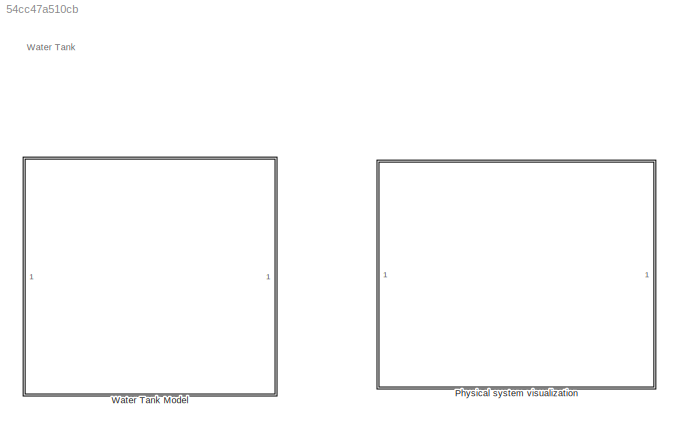
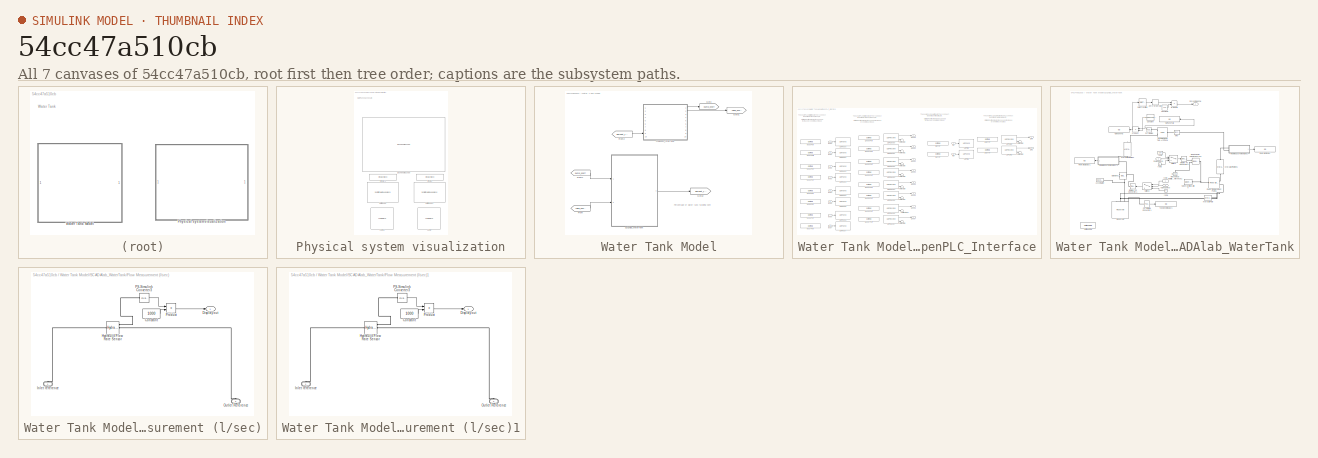
[diagram: thumbnail index - all 7 canvases of the model, root first then tree order]
MODEL slx_54cc47a510cb
KIND model
CONFIG AbsTol = auto
CONFIG EnableMultiTasking = off
CONFIG FixedStep = auto
CONFIG MaxStep = auto
CONFIG MinStep = auto
CONFIG RelTol = 1e-3
CONFIG SampleTimeConstraint = Unconstrained
CONFIG Solver = FixedStepDiscrete
CONFIG SolverName = FixedStepDiscrete
CONFIG StartTime = 0.0
CONFIG StopTime = inf
WORKSPACE source: mxarray member
WORKSPACE PLC_IP_Address = 'localhost'
BLOCK [SubSystem] Physical system visualization
  Ports = []
  RequestExecContextInheritance = off
BLOCK [DashboardScope] Physical system visualization/Dashboard Scope
BLOCK [DisplayBlock] Physical system visualization/Display
  Format = short
  LabelPosition = Hide
  Transparency = 1
BLOCK [DisplayBlock] Physical system visualization/Display1
  Format = short
  LabelPosition = Hide
  Transparency = 1
BLOCK [SemiCircularGaugeBlock] Physical system visualization/Half Gauge
  ScaleMax = 0.02
BLOCK [SemiCircularGaugeBlock] Physical system visualization/Half Gauge1
  ScaleMax = 0.02
BLOCK [LampBlock] Physical system visualization/Lamp
BLOCK [LampBlock] Physical system visualization/Lamp1
BLOCK [SubSystem] Water Tank Model
  Ports = []
  RequestExecContextInheritance = off
BLOCK [From] Water Tank Model/From
  GotoTag = valve_onoff
BLOCK [From] Water Tank Model/From1
  GotoTag = pump_onoff
BLOCK [From] Water Tank Model/From2
  GotoTag = percent_full
BLOCK [Goto] Water Tank Model/Goto
  GotoTag = pump_onoff
BLOCK [Goto] Water Tank Model/Goto1
  GotoTag = valve_onoff
BLOCK [Goto] Water Tank Model/Goto2
  GotoTag = percent_full
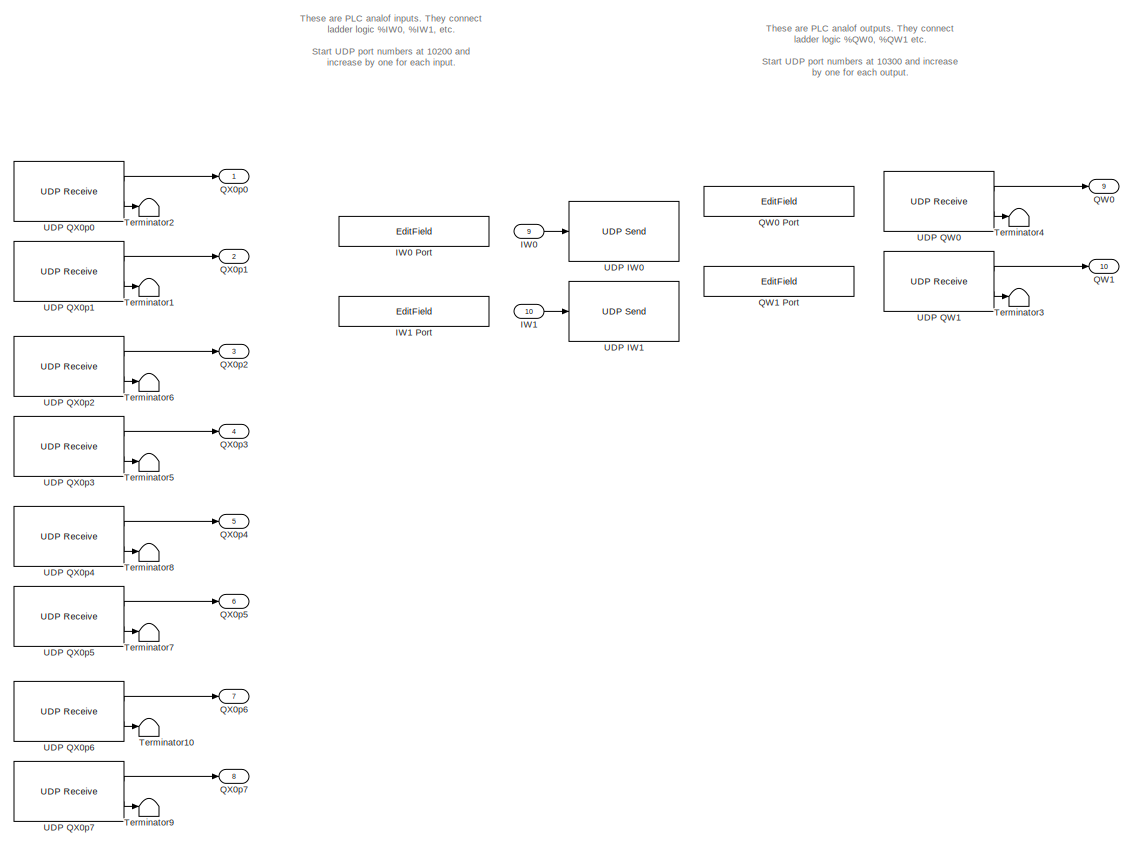
[diagram: Water Tank Model/OpenPLC_Interface - part 1/2, right side, full height]
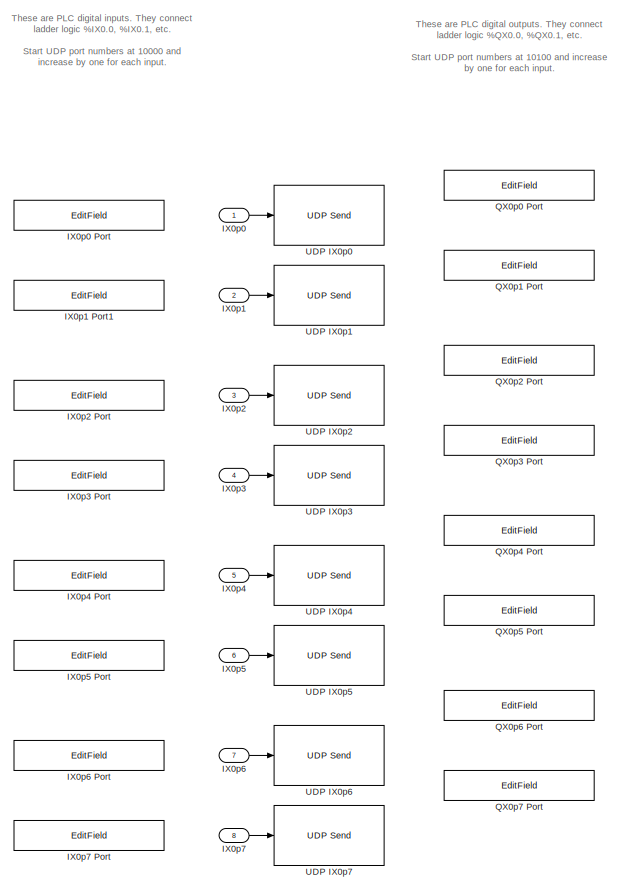
[diagram: Water Tank Model/OpenPLC_Interface - part 2/2, left side, full height]
BLOCK [SubSystem] Water Tank Model/OpenPLC_Interface
  Ports = [10, 10]
  RequestExecContextInheritance = off
BLOCK [Inport] Water Tank Model/OpenPLC_Interface/IW0
  IconDisplay = Port number
  Port = 9
BLOCK [EditField] Water Tank Model/OpenPLC_Interface/IW0 Port
  Alignment = Center
  LabelPosition = Hide
  ShowInitialText = on
BLOCK [Inport] Water Tank Model/OpenPLC_Interface/IW1
  IconDisplay = Port number
  Port = 10
BLOCK [EditField] Water Tank Model/OpenPLC_Interface/IW1 Port
  Alignment = Center
  LabelPosition = Hide
  ShowInitialText = on
BLOCK [Inport] Water Tank Model/OpenPLC_Interface/IX0p0 
  IconDisplay = Port number
BLOCK [EditField] Water Tank Model/OpenPLC_Interface/IX0p0 Port
  Alignment = Center
  LabelPosition = Hide
  ShowInitialText = on
BLOCK [Inport] Water Tank Model/OpenPLC_Interface/IX0p1
  IconDisplay = Port number
  Port = 2
BLOCK [EditField] Water Tank Model/OpenPLC_Interface/IX0p1 Port1
  Alignment = Center
  LabelPosition = Hide
  ShowInitialText = on
BLOCK [Inport] Water Tank Model/OpenPLC_Interface/IX0p2
  IconDisplay = Port number
  Port = 3
BLOCK [EditField] Water Tank Model/OpenPLC_Interface/IX0p2 Port
  Alignment = Center
  LabelPosition = Hide
  ShowInitialText = on
BLOCK [Inport] Water Tank Model/OpenPLC_Interface/IX0p3
  IconDisplay = Port number
  Port = 4
BLOCK [EditField] Water Tank Model/OpenPLC_Interface/IX0p3 Port
  Alignment = Center
  LabelPosition = Hide
  ShowInitialText = on
BLOCK [Inport] Water Tank Model/OpenPLC_Interface/IX0p4
  IconDisplay = Port number
  Port = 5
BLOCK [EditField] Water Tank Model/OpenPLC_Interface/IX0p4 Port
  Alignment = Center
  LabelPosition = Hide
  ShowInitialText = on
BLOCK [Inport] Water Tank Model/OpenPLC_Interface/IX0p5
  IconDisplay = Port number
  Port = 6
BLOCK [EditField] Water Tank Model/OpenPLC_Interface/IX0p5 Port
  Alignment = Center
  LabelPosition = Hide
  ShowInitialText = on
BLOCK [Inport] Water Tank Model/OpenPLC_Interface/IX0p6
  IconDisplay = Port number
  Port = 7
BLOCK [EditField] Water Tank Model/OpenPLC_Interface/IX0p6 Port
  Alignment = Center
  LabelPosition = Hide
  ShowInitialText = on
BLOCK [Inport] Water Tank Model/OpenPLC_Interface/IX0p7
  IconDisplay = Port number
  Port = 8
BLOCK [EditField] Water Tank Model/OpenPLC_Interface/IX0p7 Port
  Alignment = Center
  LabelPosition = Hide
  ShowInitialText = on
BLOCK [Outport] Water Tank Model/OpenPLC_Interface/QW0
  IconDisplay = Port number
  Port = 9
BLOCK [EditField] Water Tank Model/OpenPLC_Interface/QW0 Port
  Alignment = Center
  LabelPosition = Hide
  ShowInitialText = on
BLOCK [Outport] Water Tank Model/OpenPLC_Interface/QW1
  IconDisplay = Port number
  Port = 10
BLOCK [EditField] Water Tank Model/OpenPLC_Interface/QW1 Port
  Alignment = Center
  LabelPosition = Hide
  ShowInitialText = on
BLOCK [Outport] Water Tank Model/OpenPLC_Interface/QX0p0
  IconDisplay = Port number
BLOCK [EditField] Water Tank Model/OpenPLC_Interface/QX0p0 Port
  Alignment = Center
  LabelPosition = Hide
  ShowInitialText = on
BLOCK [Outport] Water Tank Model/OpenPLC_Interface/QX0p1
  IconDisplay = Port number
  Port = 2
BLOCK [EditField] Water Tank Model/OpenPLC_Interface/QX0p1 Port
  Alignment = Center
  LabelPosition = Hide
  ShowInitialText = on
BLOCK [Outport] Water Tank Model/OpenPLC_Interface/QX0p2
  IconDisplay = Port number
  Port = 3
BLOCK [EditField] Water Tank Model/OpenPLC_Interface/QX0p2 Port
  Alignment = Center
  LabelPosition = Hide
  ShowInitialText = on
BLOCK [Outport] Water Tank Model/OpenPLC_Interface/QX0p3
  IconDisplay = Port number
  Port = 4
BLOCK [EditField] Water Tank Model/OpenPLC_Interface/QX0p3 Port
  Alignment = Center
  LabelPosition = Hide
  ShowInitialText = on
BLOCK [Outport] Water Tank Model/OpenPLC_Interface/QX0p4
  IconDisplay = Port number
  Port = 5
BLOCK [EditField] Water Tank Model/OpenPLC_Interface/QX0p4 Port
  Alignment = Center
  LabelPosition = Hide
  ShowInitialText = on
BLOCK [Outport] Water Tank Model/OpenPLC_Interface/QX0p5
  IconDisplay = Port number
  Port = 6
BLOCK [EditField] Water Tank Model/OpenPLC_Interface/QX0p5 Port
  Alignment = Center
  LabelPosition = Hide
  ShowInitialText = on
BLOCK [Outport] Water Tank Model/OpenPLC_Interface/QX0p6
  IconDisplay = Port number
  Port = 7
BLOCK [EditField] Water Tank Model/OpenPLC_Interface/QX0p6 Port
  Alignment = Center
  LabelPosition = Hide
  ShowInitialText = on
BLOCK [Outport] Water Tank Model/OpenPLC_Interface/QX0p7
  IconDisplay = Port number
  Port = 8
BLOCK [EditField] Water Tank Model/OpenPLC_Interface/QX0p7 Port
  Alignment = Center
  LabelPosition = Hide
  ShowInitialText = on
BLOCK [Terminator] Water Tank Model/OpenPLC_Interface/Terminator1
BLOCK [Terminator] Water Tank Model/OpenPLC_Interface/Terminator10
BLOCK [Terminator] Water Tank Model/OpenPLC_Interface/Terminator2
BLOCK [Terminator] Water Tank Model/OpenPLC_Interface/Terminator3
BLOCK [Terminator] Water Tank Model/OpenPLC_Interface/Terminator4
BLOCK [Terminator] Water Tank Model/OpenPLC_Interface/Terminator5
BLOCK [Terminator] Water Tank Model/OpenPLC_Interface/Terminator6
BLOCK [Terminator] Water Tank Model/OpenPLC_Interface/Terminator7
BLOCK [Terminator] Water Tank Model/OpenPLC_Interface/Terminator8
BLOCK [Terminator] Water Tank Model/OpenPLC_Interface/Terminator9
BLOCK [Reference] Water Tank Model/OpenPLC_Interface/UDP IW0  REF=dspnetwork/UDP Send
  Ports = [1]
  SourceBlock = dspnetwork/UDP Send
  SourceProductBaseCode = DS
  SourceProductName = DSP System Toolbox
  SourceType = UDP Send
BLOCK [Reference] Water Tank Model/OpenPLC_Interface/UDP IW1  REF=dspnetwork/UDP Send
  Ports = [1]
  SourceBlock = dspnetwork/UDP Send
  SourceProductBaseCode = DS
  SourceProductName = DSP System Toolbox
  SourceType = UDP Send
BLOCK [Reference] Water Tank Model/OpenPLC_Interface/UDP IX0p0  REF=dspnetwork/UDP Send
  Ports = [1]
  SourceBlock = dspnetwork/UDP Send
  SourceProductBaseCode = DS
  SourceProductName = DSP System Toolbox
  SourceType = UDP Send
BLOCK [Reference] Water Tank Model/OpenPLC_Interface/UDP IX0p1  REF=dspnetwork/UDP Send
  Ports = [1]
  SourceBlock = dspnetwork/UDP Send
  SourceProductBaseCode = DS
  SourceProductName = DSP System Toolbox
  SourceType = UDP Send
BLOCK [Reference] Water Tank Model/OpenPLC_Interface/UDP IX0p2  REF=dspnetwork/UDP Send
  Ports = [1]
  SourceBlock = dspnetwork/UDP Send
  SourceProductBaseCode = DS
  SourceProductName = DSP System Toolbox
  SourceType = UDP Send
BLOCK [Reference] Water Tank Model/OpenPLC_Interface/UDP IX0p3  REF=dspnetwork/UDP Send
  Ports = [1]
  SourceBlock = dspnetwork/UDP Send
  SourceProductBaseCode = DS
  SourceProductName = DSP System Toolbox
  SourceType = UDP Send
BLOCK [Reference] Water Tank Model/OpenPLC_Interface/UDP IX0p4  REF=dspnetwork/UDP Send
  Ports = [1]
  SourceBlock = dspnetwork/UDP Send
  SourceProductBaseCode = DS
  SourceProductName = DSP System Toolbox
  SourceType = UDP Send
BLOCK [Reference] Water Tank Model/OpenPLC_Interface/UDP IX0p5  REF=dspnetwork/UDP Send
  Ports = [1]
  SourceBlock = dspnetwork/UDP Send
  SourceProductBaseCode = DS
  SourceProductName = DSP System Toolbox
  SourceType = UDP Send
BLOCK [Reference] Water Tank Model/OpenPLC_Interface/UDP IX0p6  REF=dspnetwork/UDP Send
  Ports = [1]
  SourceBlock = dspnetwork/UDP Send
  SourceProductBaseCode = DS
  SourceProductName = DSP System Toolbox
  SourceType = UDP Send
BLOCK [Reference] Water Tank Model/OpenPLC_Interface/UDP IX0p7  REF=dspnetwork/UDP Send
  Ports = [1]
  SourceBlock = dspnetwork/UDP Send
  SourceProductBaseCode = DS
  SourceProductName = DSP System Toolbox
  SourceType = UDP Send
BLOCK [Reference] Water Tank Model/OpenPLC_Interface/UDP QW0  REF=dspnetwork/UDP Receive
  Ports = [0, 2]
  SourceBlock = dspnetwork/UDP Receive
  SourceProductBaseCode = DS
  SourceProductName = DSP System Toolbox
  SourceType = UDP Receive
BLOCK [Reference] Water Tank Model/OpenPLC_Interface/UDP QW1  REF=dspnetwork/UDP Receive
  Ports = [0, 2]
  SourceBlock = dspnetwork/UDP Receive
  SourceProductBaseCode = DS
  SourceProductName = DSP System Toolbox
  SourceType = UDP Receive
BLOCK [Reference] Water Tank Model/OpenPLC_Interface/UDP QX0p0  REF=dspnetwork/UDP Receive
  Ports = [0, 2]
  SourceBlock = dspnetwork/UDP Receive
  SourceProductBaseCode = DS
  SourceProductName = DSP System Toolbox
  SourceType = UDP Receive
BLOCK [Reference] Water Tank Model/OpenPLC_Interface/UDP QX0p1  REF=dspnetwork/UDP Receive
  Ports = [0, 2]
  SourceBlock = dspnetwork/UDP Receive
  SourceProductBaseCode = DS
  SourceProductName = DSP System Toolbox
  SourceType = UDP Receive
BLOCK [Reference] Water Tank Model/OpenPLC_Interface/UDP QX0p2  REF=dspnetwork/UDP Receive
  Ports = [0, 2]
  SourceBlock = dspnetwork/UDP Receive
  SourceProductBaseCode = DS
  SourceProductName = DSP System Toolbox
  SourceType = UDP Receive
BLOCK [Reference] Water Tank Model/OpenPLC_Interface/UDP QX0p3  REF=dspnetwork/UDP Receive
  Ports = [0, 2]
  SourceBlock = dspnetwork/UDP Receive
  SourceProductBaseCode = DS
  SourceProductName = DSP System Toolbox
  SourceType = UDP Receive
BLOCK [Reference] Water Tank Model/OpenPLC_Interface/UDP QX0p4  REF=dspnetwork/UDP Receive
  Ports = [0, 2]
  SourceBlock = dspnetwork/UDP Receive
  SourceProductBaseCode = DS
  SourceProductName = DSP System Toolbox
  SourceType = UDP Receive
BLOCK [Reference] Water Tank Model/OpenPLC_Interface/UDP QX0p5  REF=dspnetwork/UDP Receive
  Ports = [0, 2]
  SourceBlock = dspnetwork/UDP Receive
  SourceProductBaseCode = DS
  SourceProductName = DSP System Toolbox
  SourceType = UDP Receive
BLOCK [Reference] Water Tank Model/OpenPLC_Interface/UDP QX0p6  REF=dspnetwork/UDP Receive
  Ports = [0, 2]
  SourceBlock = dspnetwork/UDP Receive
  SourceProductBaseCode = DS
  SourceProductName = DSP System Toolbox
  SourceType = UDP Receive
BLOCK [Reference] Water Tank Model/OpenPLC_Interface/UDP QX0p7  REF=dspnetwork/UDP Receive
  Ports = [0, 2]
  SourceBlock = dspnetwork/UDP Receive
  SourceProductBaseCode = DS
  SourceProductName = DSP System Toolbox
  SourceType = UDP Receive
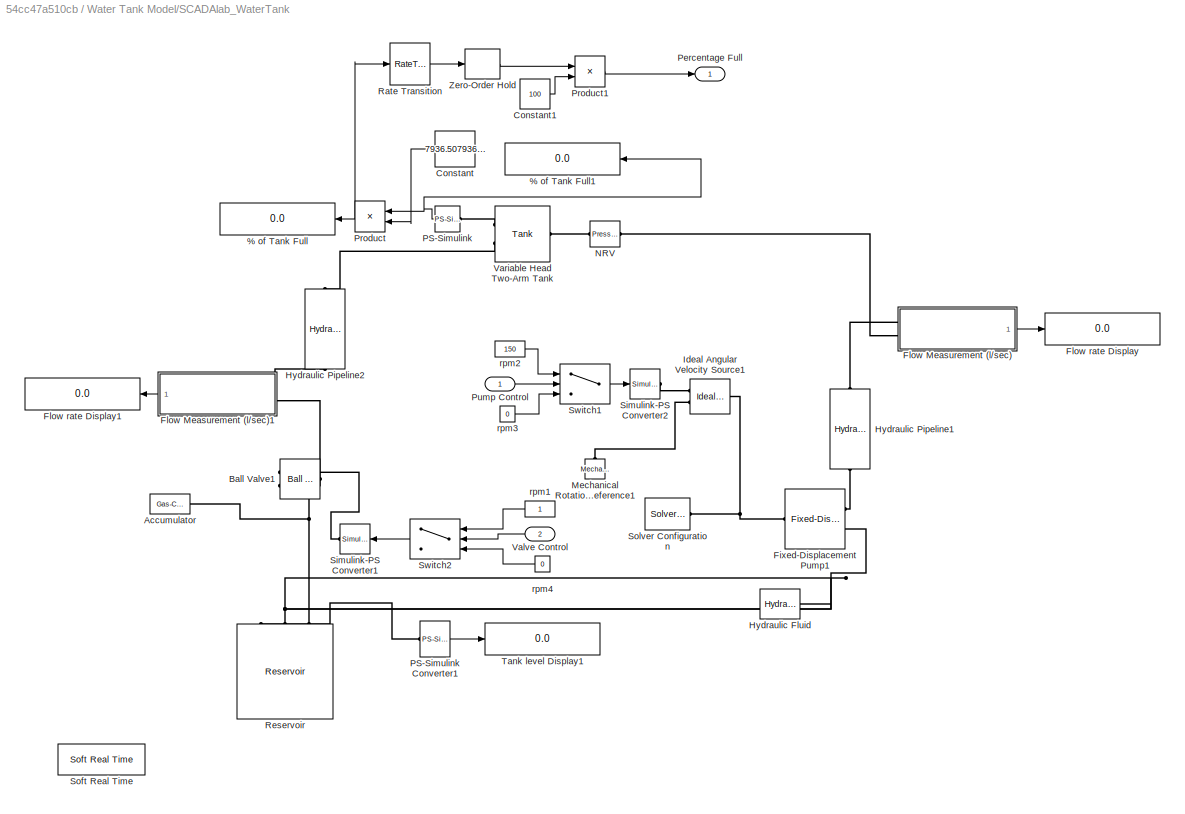
BLOCK [SubSystem] Water Tank Model/SCADAlab_WaterTank
  Ports = [2, 1]
  RequestExecContextInheritance = off
BLOCK [Display] Water Tank Model/SCADAlab_WaterTank/% of Tank Full
  Decimation = 1
  Format = long
  Ports = [1]
BLOCK [Display] Water Tank Model/SCADAlab_WaterTank/% of Tank Full1
  Decimation = 1
  Format = long
  Ports = [1]
BLOCK [Reference] Water Tank Model/SCADAlab_WaterTank/Accumulator  REF=sh_lib/Accumulators/Gas-Charged
Accumulator
  Ports = [0, 0, 0, 0, 0, 0, 1]
  SourceBlock = sh_lib/Accumulators/Gas-Charged\nAccumulator
  SourceProductBaseCode = SH
  SourceProductName = Simscape Fluids
  SourceType = Gas-Charged\nAccumulator
BLOCK [Reference] Water Tank Model/SCADAlab_WaterTank/Ball Valve1  REF=sh_lib/Valves/Flow Control Valves/Ball Valve
  Ports = [0, 0, 0, 0, 0, 2, 1]
  SourceBlock = sh_lib/Valves/Flow Control Valves/Ball Valve
  SourceProductBaseCode = SH
  SourceProductName = Simscape Fluids
  SourceType = Ball Valve
BLOCK [Constant] Water Tank Model/SCADAlab_WaterTank/Constant
  Value = 7936.507936507937
BLOCK [Constant] Water Tank Model/SCADAlab_WaterTank/Constant1
  Value = 100
BLOCK [Reference] Water Tank Model/SCADAlab_WaterTank/Fixed-Displacement Pump1  REF=sh_lib/Pumps and Motors/Fixed-Displacement
Pump
  Ports = [0, 0, 0, 0, 0, 1, 2]
  SourceBlock = sh_lib/Pumps and Motors/Fixed-Displacement\nPump
  SourceProductBaseCode = SH
  SourceProductName = Simscape Fluids
  SourceType = Fixed-Displacement\nPump
BLOCK [SubSystem] Water Tank Model/SCADAlab_WaterTank/Flow Measurement (l//sec)
  Ports = [0, 1, 0, 0, 0, 2]
  RequestExecContextInheritance = off
BLOCK [PMIOPort] Water Tank Model/SCADAlab_WaterTank/Flow Measurement (l//sec)/ Outlet Reference
  Port = 2
  Side = Left
BLOCK [Constant] Water Tank Model/SCADAlab_WaterTank/Flow Measurement (l//sec)/Constant
  Value = 1000
BLOCK [Outport] Water Tank Model/SCADAlab_WaterTank/Flow Measurement (l//sec)/Display out
  IconDisplay = Port number
BLOCK [Reference] Water Tank Model/SCADAlab_WaterTank/Flow Measurement (l//sec)/Hydraulic Flow Rate Sensor  REF=fl_lib/Hydraulic/Hydraulic Sensors/Hydraulic Flow Rate
Sensor
  Ports = [0, 0, 0, 0, 0, 1, 3]
  SourceBlock = fl_lib/Hydraulic/Hydraulic Sensors/Hydraulic Flow Rate\nSensor
  SourceProductBaseCode = SS
  SourceProductName = Simscape
  SourceType = Hydraulic Flow Rate\nSensor
BLOCK [PMIOPort] Water Tank Model/SCADAlab_WaterTank/Flow Measurement (l//sec)/Inlet reference
  Side = Left
BLOCK [Reference] Water Tank Model/SCADAlab_WaterTank/Flow Measurement (l//sec)/PS-Simulink Converter3  REF=nesl_utility/PS-Simulink
Converter
  Ports = [0, 1, 0, 0, 0, 1]
  SourceBlock = nesl_utility/PS-Simulink\nConverter
  SourceProductBaseCode = SS
  SourceProductName = Simscape
  SourceType = PS-Simulink\nConverter
BLOCK [Product] Water Tank Model/SCADAlab_WaterTank/Flow Measurement (l//sec)/Product
  InputSameDT = off
  OutDataTypeStr = Inherit: Inherit via internal rule
  Ports = [2, 1]
  RndMeth = Floor
  SaturateOnIntegerOverflow = off
BLOCK [SubSystem] Water Tank Model/SCADAlab_WaterTank/Flow Measurement (l//sec)1
  Ports = [0, 1, 0, 0, 0, 2]
  RequestExecContextInheritance = off
BLOCK [PMIOPort] Water Tank Model/SCADAlab_WaterTank/Flow Measurement (l//sec)1/ Outlet Reference
  Port = 2
  Side = Left
BLOCK [Constant] Water Tank Model/SCADAlab_WaterTank/Flow Measurement (l//sec)1/Constant
  Value = 1000
BLOCK [Outport] Water Tank Model/SCADAlab_WaterTank/Flow Measurement (l//sec)1/Display out
  IconDisplay = Port number
BLOCK [Reference] Water Tank Model/SCADAlab_WaterTank/Flow Measurement (l//sec)1/Hydraulic Flow Rate Sensor  REF=fl_lib/Hydraulic/Hydraulic Sensors/Hydraulic Flow Rate
Sensor
  Ports = [0, 0, 0, 0, 0, 1, 3]
  SourceBlock = fl_lib/Hydraulic/Hydraulic Sensors/Hydraulic Flow Rate\nSensor
  SourceProductBaseCode = SS
  SourceProductName = Simscape
  SourceType = Hydraulic Flow Rate\nSensor
BLOCK [PMIOPort] Water Tank Model/SCADAlab_WaterTank/Flow Measurement (l//sec)1/Inlet reference
  Side = Left
BLOCK [Reference] Water Tank Model/SCADAlab_WaterTank/Flow Measurement (l//sec)1/PS-Simulink Converter3  REF=nesl_utility/PS-Simulink
Converter
  Ports = [0, 1, 0, 0, 0, 1]
  SourceBlock = nesl_utility/PS-Simulink\nConverter
  SourceProductBaseCode = SS
  SourceProductName = Simscape
  SourceType = PS-Simulink\nConverter
BLOCK [Product] Water Tank Model/SCADAlab_WaterTank/Flow Measurement (l//sec)1/Product
  InputSameDT = off
  OutDataTypeStr = Inherit: Inherit via internal rule
  Ports = [2, 1]
  RndMeth = Floor
  SaturateOnIntegerOverflow = off
BLOCK [Display] Water Tank Model/SCADAlab_WaterTank/Flow rate Display
  Decimation = 1
  Ports = [1]
BLOCK [Display] Water Tank Model/SCADAlab_WaterTank/Flow rate Display1
  Decimation = 1
  Ports = [1]
BLOCK [Reference] Water Tank Model/SCADAlab_WaterTank/Hydraulic Fluid  REF=sh_lib/Hydraulic Utilities/Hydraulic Fluid
  Ports = [0, 0, 0, 0, 0, 0, 1]
  SourceBlock = sh_lib/Hydraulic Utilities/Hydraulic Fluid
  SourceProductBaseCode = SH
  SourceProductName = Simscape Fluids
  SourceType = Hydraulic Fluid
BLOCK [Reference] Water Tank Model/SCADAlab_WaterTank/Hydraulic Pipeline1  REF=sh_lib/Pipelines/Hydraulic Pipeline
  Ports = [0, 0, 0, 0, 0, 1, 1]
  SourceBlock = sh_lib/Pipelines/Hydraulic Pipeline
  SourceProductBaseCode = SH
  SourceProductName = Simscape Fluids
  SourceType = Hydraulic Pipeline
BLOCK [Reference] Water Tank Model/SCADAlab_WaterTank/Hydraulic Pipeline2  REF=sh_lib/Pipelines/Hydraulic Pipeline
  Ports = [0, 0, 0, 0, 0, 1, 1]
  SourceBlock = sh_lib/Pipelines/Hydraulic Pipeline
  SourceProductBaseCode = SH
  SourceProductName = Simscape Fluids
  SourceType = Hydraulic Pipeline
BLOCK [Reference] Water Tank Model/SCADAlab_WaterTank/Ideal Angular Velocity Source1  REF=fl_lib/Mechanical/Mechanical Sources/Ideal Angular
Velocity Source
  Ports = [0, 0, 0, 0, 0, 1, 2]
  SourceBlock = fl_lib/Mechanical/Mechanical Sources/Ideal Angular\nVelocity Source
  SourceProductBaseCode = SS
  SourceProductName = Simscape
  SourceType = Ideal Angular\nVelocity Source
BLOCK [Reference] Water Tank Model/SCADAlab_WaterTank/Mechanical Rotational Reference1  REF=fl_lib/Mechanical/Rotational Elements/Mechanical
Rotational Reference
  Ports = [0, 0, 0, 0, 0, 1]
  SourceBlock = fl_lib/Mechanical/Rotational Elements/Mechanical\nRotational Reference
  SourceProductBaseCode = SS
  SourceProductName = Simscape
  SourceType = Mechanical\nRotational Reference
BLOCK [Reference] Water Tank Model/SCADAlab_WaterTank/NRV  REF=sh_lib/Valves/Pressure Control
Valves/Pressure Relief
Valve
  Ports = [0, 0, 0, 0, 0, 1, 1]
  SourceBlock = sh_lib/Valves/Pressure Control\nValves/Pressure Relief\nValve
  SourceProductBaseCode = SH
  SourceProductName = Simscape Fluids
  SourceType = Pressure Relief\nValve
BLOCK [Reference] Water Tank Model/SCADAlab_WaterTank/PS-Simulink   REF=nesl_utility/PS-Simulink
Converter
  Ports = [0, 1, 0, 0, 0, 1]
  SourceBlock = nesl_utility/PS-Simulink\nConverter
  SourceProductBaseCode = SS
  SourceProductName = Simscape
  SourceType = PS-Simulink\nConverter
BLOCK [Reference] Water Tank Model/SCADAlab_WaterTank/PS-Simulink Converter1  REF=nesl_utility/PS-Simulink
Converter
  Ports = [0, 1, 0, 0, 0, 1]
  SourceBlock = nesl_utility/PS-Simulink\nConverter
  SourceProductBaseCode = SS
  SourceProductName = Simscape
  SourceType = PS-Simulink\nConverter
BLOCK [Outport] Water Tank Model/SCADAlab_WaterTank/Percentage Full
  IconDisplay = Port number
BLOCK [Product] Water Tank Model/SCADAlab_WaterTank/Product
  InputSameDT = off
  OutDataTypeStr = Inherit: Inherit via internal rule
  Ports = [2, 1]
  RndMeth = Floor
  SaturateOnIntegerOverflow = off
BLOCK [Product] Water Tank Model/SCADAlab_WaterTank/Product1
  InputSameDT = off
  OutDataTypeStr = Inherit: Inherit via internal rule
  Ports = [2, 1]
  RndMeth = Floor
  SaturateOnIntegerOverflow = off
BLOCK [Inport] Water Tank Model/SCADAlab_WaterTank/Pump Control
  IconDisplay = Port number
BLOCK [RateTransition] Water Tank Model/SCADAlab_WaterTank/Rate Transition
BLOCK [Reference] Water Tank Model/SCADAlab_WaterTank/Reservoir  REF=sh_lib/Hydraulic Utilities/Reservoir
  Ports = [0, 0, 0, 0, 0, 3]
  SourceBlock = sh_lib/Hydraulic Utilities/Reservoir
  SourceProductBaseCode = SH
  SourceProductName = Simscape Fluids
  SourceType = Reservoir
BLOCK [Reference] Water Tank Model/SCADAlab_WaterTank/Simulink-PS Converter1  REF=nesl_utility/Simulink-PS
Converter
  Ports = [1, 0, 0, 0, 0, 0, 1]
  SourceBlock = nesl_utility/Simulink-PS\nConverter
  SourceProductBaseCode = SS
  SourceProductName = Simscape
  SourceType = Simulink-PS\nConverter
BLOCK [Reference] Water Tank Model/SCADAlab_WaterTank/Simulink-PS Converter2  REF=nesl_utility/Simulink-PS
Converter
  Ports = [1, 0, 0, 0, 0, 0, 1]
  SourceBlock = nesl_utility/Simulink-PS\nConverter
  SourceProductBaseCode = SS
  SourceProductName = Simscape
  SourceType = Simulink-PS\nConverter
BLOCK [Reference] Water Tank Model/SCADAlab_WaterTank/Soft Real Time  REF=utility/Soft Real Time  (lib defined in slx_8818c3a16fdf)
  Ports = []
  SourceBlock = utility/Soft Real Time
BLOCK [Reference] Water Tank Model/SCADAlab_WaterTank/Solver Configuration  REF=nesl_utility/Solver
Configuration
  Ports = [0, 0, 0, 0, 0, 0, 1]
  SourceBlock = nesl_utility/Solver\nConfiguration
  SourceProductBaseCode = SS
  SourceProductName = Simscape
  SourceType = Solver\nConfiguration
BLOCK [Switch] Water Tank Model/SCADAlab_WaterTank/Switch1
  InputSameDT = off
  SaturateOnIntegerOverflow = off
  Threshold = 1
BLOCK [Switch] Water Tank Model/SCADAlab_WaterTank/Switch2
  InputSameDT = off
  SaturateOnIntegerOverflow = off
  Threshold = 1
BLOCK [Display] Water Tank Model/SCADAlab_WaterTank/Tank level Display1
  Decimation = 1
  Format = long
  Ports = [1]
BLOCK [Inport] Water Tank Model/SCADAlab_WaterTank/Valve Control 
  IconDisplay = Port number
  Port = 2
BLOCK [Reference] Water Tank Model/SCADAlab_WaterTank/Variable Head Two-Arm Tank  REF=sh_lib/Low-Pressure Blocks/Tank
  Ports = [0, 0, 0, 0, 0, 1, 2]
  SourceBlock = sh_lib/Low-Pressure Blocks/Tank
  SourceProductBaseCode = SH
  SourceProductName = Simscape Fluids
  SourceType = Tank
BLOCK [ZeroOrderHold] Water Tank Model/SCADAlab_WaterTank/Zero-Order Hold
  SampleTime = 0.1
BLOCK [Constant] Water Tank Model/SCADAlab_WaterTank/rpm1
BLOCK [Constant] Water Tank Model/SCADAlab_WaterTank/rpm2
  Value = 150
BLOCK [Constant] Water Tank Model/SCADAlab_WaterTank/rpm3
  Value = 0
BLOCK [Constant] Water Tank Model/SCADAlab_WaterTank/rpm4
  Value = 0
ANNOTATION (root): Water Tank
ANNOTATION Physical system visualization: Water Tank Dashboard
ANNOTATION Water Tank Model: Percentage of water tank full being sent
ANNOTATION Water Tank Model/OpenPLC_Interface: These are PLC analof inputs. They connect ladder logic %IW0, %IW1, etc. Start UDP port numbers at 10200 and increase by one for each input. Update model variable PLC_IP_Address to set PLC ip address.
ANNOTATION Water Tank Model/OpenPLC_Interface: These are PLC analof outputs. They connect ladder logic %QW0, %QW1 etc. Start UDP port numbers at 10300 and increase by one for each output.
ANNOTATION Water Tank Model/OpenPLC_Interface: These are PLC digital inputs. They connect ladder logic %IX0.0, %IX0.1, etc. Start UDP port numbers at 10000 and increase by one for each input. Update model variable PLC_IP_Address to set PLC ip address.
ANNOTATION Water Tank Model/OpenPLC_Interface: These are PLC digital outputs. They connect ladder logic %QX0.0, %QX0.1, etc. Start UDP port numbers at 10100 and increase by one for each input.
LINE Water Tank Model/From1:1 -> Water Tank Model/SCADAlab_WaterTank:1
LINE Water Tank Model/From2:1 -> Water Tank Model/OpenPLC_Interface:9
LINE Water Tank Model/From:1 -> Water Tank Model/SCADAlab_WaterTank:2
LINE Water Tank Model/OpenPLC_Interface/IW0:1 -> Water Tank Model/OpenPLC_Interface/UDP IW0:1
LINE Water Tank Model/OpenPLC_Interface/IW1:1 -> Water Tank Model/OpenPLC_Interface/UDP IW1:1
LINE Water Tank Model/OpenPLC_Interface/IX0p0 :1 -> Water Tank Model/OpenPLC_Interface/UDP IX0p0:1
LINE Water Tank Model/OpenPLC_Interface/IX0p1:1 -> Water Tank Model/OpenPLC_Interface/UDP IX0p1:1
LINE Water Tank Model/OpenPLC_Interface/IX0p2:1 -> Water Tank Model/OpenPLC_Interface/UDP IX0p2:1
LINE Water Tank Model/OpenPLC_Interface/IX0p3:1 -> Water Tank Model/OpenPLC_Interface/UDP IX0p3:1
LINE Water Tank Model/OpenPLC_Interface/IX0p4:1 -> Water Tank Model/OpenPLC_Interface/UDP IX0p4:1
LINE Water Tank Model/OpenPLC_Interface/IX0p5:1 -> Water Tank Model/OpenPLC_Interface/UDP IX0p5:1
LINE Water Tank Model/OpenPLC_Interface/IX0p6:1 -> Water Tank Model/OpenPLC_Interface/UDP IX0p6:1
LINE Water Tank Model/OpenPLC_Interface/IX0p7:1 -> Water Tank Model/OpenPLC_Interface/UDP IX0p7:1
LINE Water Tank Model/OpenPLC_Interface/UDP QW0:1 -> Water Tank Model/OpenPLC_Interface/QW0:1
LINE Water Tank Model/OpenPLC_Interface/UDP QW0:2 -> Water Tank Model/OpenPLC_Interface/Terminator4:1
LINE Water Tank Model/OpenPLC_Interface/UDP QW1:1 -> Water Tank Model/OpenPLC_Interface/QW1:1
LINE Water Tank Model/OpenPLC_Interface/UDP QW1:2 -> Water Tank Model/OpenPLC_Interface/Terminator3:1
LINE Water Tank Model/OpenPLC_Interface/UDP QX0p0:1 -> Water Tank Model/OpenPLC_Interface/QX0p0:1
LINE Water Tank Model/OpenPLC_Interface/UDP QX0p0:2 -> Water Tank Model/OpenPLC_Interface/Terminator2:1
LINE Water Tank Model/OpenPLC_Interface/UDP QX0p1:1 -> Water Tank Model/OpenPLC_Interface/QX0p1:1
LINE Water Tank Model/OpenPLC_Interface/UDP QX0p1:2 -> Water Tank Model/OpenPLC_Interface/Terminator1:1
LINE Water Tank Model/OpenPLC_Interface/UDP QX0p2:1 -> Water Tank Model/OpenPLC_Interface/QX0p2:1
LINE Water Tank Model/OpenPLC_Interface/UDP QX0p2:2 -> Water Tank Model/OpenPLC_Interface/Terminator6:1
LINE Water Tank Model/OpenPLC_Interface/UDP QX0p3:1 -> Water Tank Model/OpenPLC_Interface/QX0p3:1
LINE Water Tank Model/OpenPLC_Interface/UDP QX0p3:2 -> Water Tank Model/OpenPLC_Interface/Terminator5:1
LINE Water Tank Model/OpenPLC_Interface/UDP QX0p4:1 -> Water Tank Model/OpenPLC_Interface/QX0p4:1
LINE Water Tank Model/OpenPLC_Interface/UDP QX0p4:2 -> Water Tank Model/OpenPLC_Interface/Terminator8:1
LINE Water Tank Model/OpenPLC_Interface/UDP QX0p5:1 -> Water Tank Model/OpenPLC_Interface/QX0p5:1
LINE Water Tank Model/OpenPLC_Interface/UDP QX0p5:2 -> Water Tank Model/OpenPLC_Interface/Terminator7:1
LINE Water Tank Model/OpenPLC_Interface/UDP QX0p6:1 -> Water Tank Model/OpenPLC_Interface/QX0p6:1
LINE Water Tank Model/OpenPLC_Interface/UDP QX0p6:2 -> Water Tank Model/OpenPLC_Interface/Terminator10:1
LINE Water Tank Model/OpenPLC_Interface/UDP QX0p7:1 -> Water Tank Model/OpenPLC_Interface/QX0p7:1
LINE Water Tank Model/OpenPLC_Interface/UDP QX0p7:2 -> Water Tank Model/OpenPLC_Interface/Terminator9:1
LINE Water Tank Model/OpenPLC_Interface:1 -> Water Tank Model/Goto:1
LINE Water Tank Model/OpenPLC_Interface:2 -> Water Tank Model/Goto1:1
LINE Water Tank Model/SCADAlab_WaterTank/Constant1:1 -> Water Tank Model/SCADAlab_WaterTank/Product1:2
LINE Water Tank Model/SCADAlab_WaterTank/Constant:1 -> Water Tank Model/SCADAlab_WaterTank/Product:2
LINE Water Tank Model/SCADAlab_WaterTank/Flow Measurement (l//sec)/Constant:1 -> Water Tank Model/SCADAlab_WaterTank/Flow Measurement (l//sec)/Product:2
LINE Water Tank Model/SCADAlab_WaterTank/Flow Measurement (l//sec)/PS-Simulink Converter3:1 -> Water Tank Model/SCADAlab_WaterTank/Flow Measurement (l//sec)/Product:1
LINE Water Tank Model/SCADAlab_WaterTank/Flow Measurement (l//sec)/Product:1 -> Water Tank Model/SCADAlab_WaterTank/Flow Measurement (l//sec)/Display out:1
LINE Water Tank Model/SCADAlab_WaterTank/Flow Measurement (l//sec)1/Constant:1 -> Water Tank Model/SCADAlab_WaterTank/Flow Measurement (l//sec)1/Product:2
LINE Water Tank Model/SCADAlab_WaterTank/Flow Measurement (l//sec)1/PS-Simulink Converter3:1 -> Water Tank Model/SCADAlab_WaterTank/Flow Measurement (l//sec)1/Product:1
LINE Water Tank Model/SCADAlab_WaterTank/Flow Measurement (l//sec)1/Product:1 -> Water Tank Model/SCADAlab_WaterTank/Flow Measurement (l//sec)1/Display out:1
LINE Water Tank Model/SCADAlab_WaterTank/Flow Measurement (l//sec)1:1 -> Water Tank Model/SCADAlab_WaterTank/Flow rate Display1:1
LINE Water Tank Model/SCADAlab_WaterTank/Flow Measurement (l//sec):1 -> Water Tank Model/SCADAlab_WaterTank/Flow rate Display:1
NET Water Tank Model/SCADAlab_WaterTank/PS-Simulink :1 -> Water Tank Model/SCADAlab_WaterTank/% of Tank Full1:1, Water Tank Model/SCADAlab_WaterTank/Product:1
LINE Water Tank Model/SCADAlab_WaterTank/PS-Simulink Converter1:1 -> Water Tank Model/SCADAlab_WaterTank/Tank level Display1:1
LINE Water Tank Model/SCADAlab_WaterTank/Product1:1 -> Water Tank Model/SCADAlab_WaterTank/Percentage Full:1
NET Water Tank Model/SCADAlab_WaterTank/Product:1 -> Water Tank Model/SCADAlab_WaterTank/% of Tank Full:1, Water Tank Model/SCADAlab_WaterTank/Rate Transition:1
LINE Water Tank Model/SCADAlab_WaterTank/Pump Control:1 -> Water Tank Model/SCADAlab_WaterTank/Switch1:2
LINE Water Tank Model/SCADAlab_WaterTank/Rate Transition:1 -> Water Tank Model/SCADAlab_WaterTank/Zero-Order Hold:1
LINE Water Tank Model/SCADAlab_WaterTank/Switch1:1 -> Water Tank Model/SCADAlab_WaterTank/Simulink-PS Converter2:1
LINE Water Tank Model/SCADAlab_WaterTank/Switch2:1 -> Water Tank Model/SCADAlab_WaterTank/Simulink-PS Converter1:1
LINE Water Tank Model/SCADAlab_WaterTank/Valve Control :1 -> Water Tank Model/SCADAlab_WaterTank/Switch2:2
LINE Water Tank Model/SCADAlab_WaterTank/Zero-Order Hold:1 -> Water Tank Model/SCADAlab_WaterTank/Product1:1
LINE Water Tank Model/SCADAlab_WaterTank/rpm1:1 -> Water Tank Model/SCADAlab_WaterTank/Switch2:1
LINE Water Tank Model/SCADAlab_WaterTank/rpm2:1 -> Water Tank Model/SCADAlab_WaterTank/Switch1:1
LINE Water Tank Model/SCADAlab_WaterTank/rpm3:1 -> Water Tank Model/SCADAlab_WaterTank/Switch1:3
LINE Water Tank Model/SCADAlab_WaterTank/rpm4:1 -> Water Tank Model/SCADAlab_WaterTank/Switch2:3
LINE Water Tank Model/SCADAlab_WaterTank:1 -> Water Tank Model/Goto2:1
PNET net1: Water Tank Model/SCADAlab_WaterTank/Accumulator:RConn1 -- Water Tank Model/SCADAlab_WaterTank/Ball Valve1:RConn1 -- Water Tank Model/SCADAlab_WaterTank/Reservoir:LConn3
PLINE Water Tank Model/SCADAlab_WaterTank/Ball Valve1:LConn1 -- Water Tank Model/SCADAlab_WaterTank/Simulink-PS Converter1:RConn1
PLINE Water Tank Model/SCADAlab_WaterTank/Ball Valve1:LConn2 -- Water Tank Model/SCADAlab_WaterTank/Flow Measurement (l//sec)1:LConn2
PNET net2: Water Tank Model/SCADAlab_WaterTank/Fixed-Displacement Pump1:LConn1 -- Water Tank Model/SCADAlab_WaterTank/Ideal Angular Velocity Source1:LConn1 -- Water Tank Model/SCADAlab_WaterTank/Solver Configuration:RConn1
PLINE Water Tank Model/SCADAlab_WaterTank/Fixed-Displacement Pump1:RConn1 -- Water Tank Model/SCADAlab_WaterTank/Hydraulic Pipeline1:RConn1
PNET net3: Water Tank Model/SCADAlab_WaterTank/Fixed-Displacement Pump1:RConn2 -- Water Tank Model/SCADAlab_WaterTank/Hydraulic Fluid:RConn1 -- Water Tank Model/SCADAlab_WaterTank/Reservoir:LConn2
PLINE Water Tank Model/SCADAlab_WaterTank/Flow Measurement (l//sec)/ Outlet Reference:RConn1 -- Water Tank Model/SCADAlab_WaterTank/Flow Measurement (l//sec)/Hydraulic Flow Rate Sensor:RConn2
PLINE Water Tank Model/SCADAlab_WaterTank/Flow Measurement (l//sec)/Hydraulic Flow Rate Sensor:LConn1 -- Water Tank Model/SCADAlab_WaterTank/Flow Measurement (l//sec)/Inlet reference:RConn1
PLINE Water Tank Model/SCADAlab_WaterTank/Flow Measurement (l//sec)/Hydraulic Flow Rate Sensor:RConn1 -- Water Tank Model/SCADAlab_WaterTank/Flow Measurement (l//sec)/PS-Simulink Converter3:LConn1
PLINE Water Tank Model/SCADAlab_WaterTank/Flow Measurement (l//sec)1/ Outlet Reference:RConn1 -- Water Tank Model/SCADAlab_WaterTank/Flow Measurement (l//sec)1/Hydraulic Flow Rate Sensor:RConn2
PLINE Water Tank Model/SCADAlab_WaterTank/Flow Measurement (l//sec)1/Hydraulic Flow Rate Sensor:LConn1 -- Water Tank Model/SCADAlab_WaterTank/Flow Measurement (l//sec)1/Inlet reference:RConn1
PLINE Water Tank Model/SCADAlab_WaterTank/Flow Measurement (l//sec)1/Hydraulic Flow Rate Sensor:RConn1 -- Water Tank Model/SCADAlab_WaterTank/Flow Measurement (l//sec)1/PS-Simulink Converter3:LConn1
PLINE Water Tank Model/SCADAlab_WaterTank/Flow Measurement (l//sec)1:LConn1 -- Water Tank Model/SCADAlab_WaterTank/Hydraulic Pipeline2:RConn1
PLINE Water Tank Model/SCADAlab_WaterTank/Flow Measurement (l//sec):LConn1 -- Water Tank Model/SCADAlab_WaterTank/Hydraulic Pipeline1:LConn1
PLINE Water Tank Model/SCADAlab_WaterTank/Flow Measurement (l//sec):LConn2 -- Water Tank Model/SCADAlab_WaterTank/NRV:LConn1
PLINE Water Tank Model/SCADAlab_WaterTank/Hydraulic Pipeline2:LConn1 -- Water Tank Model/SCADAlab_WaterTank/Variable Head Two-Arm Tank:RConn2
PLINE Water Tank Model/SCADAlab_WaterTank/Ideal Angular Velocity Source1:RConn1 -- Water Tank Model/SCADAlab_WaterTank/Simulink-PS Converter2:RConn1
PLINE Water Tank Model/SCADAlab_WaterTank/Ideal Angular Velocity Source1:RConn2 -- Water Tank Model/SCADAlab_WaterTank/Mechanical Rotational Reference1:LConn1
PLINE Water Tank Model/SCADAlab_WaterTank/NRV:RConn1 -- Water Tank Model/SCADAlab_WaterTank/Variable Head Two-Arm Tank:LConn1
PLINE Water Tank Model/SCADAlab_WaterTank/PS-Simulink :LConn1 -- Water Tank Model/SCADAlab_WaterTank/Variable Head Two-Arm Tank:RConn1
PLINE Water Tank Model/SCADAlab_WaterTank/PS-Simulink Converter1:LConn1 -- Water Tank Model/SCADAlab_WaterTank/Reservoir:LConn1
note: NET lines group one-source signal fan-out (src -> all destinations, sorted); 1:1 wires keep LINE; PNET lines group multi-terminal physical nets as a canonical sorted terminal list (undirected conserving connections); 2-terminal nets keep the pairwise PLINE form
